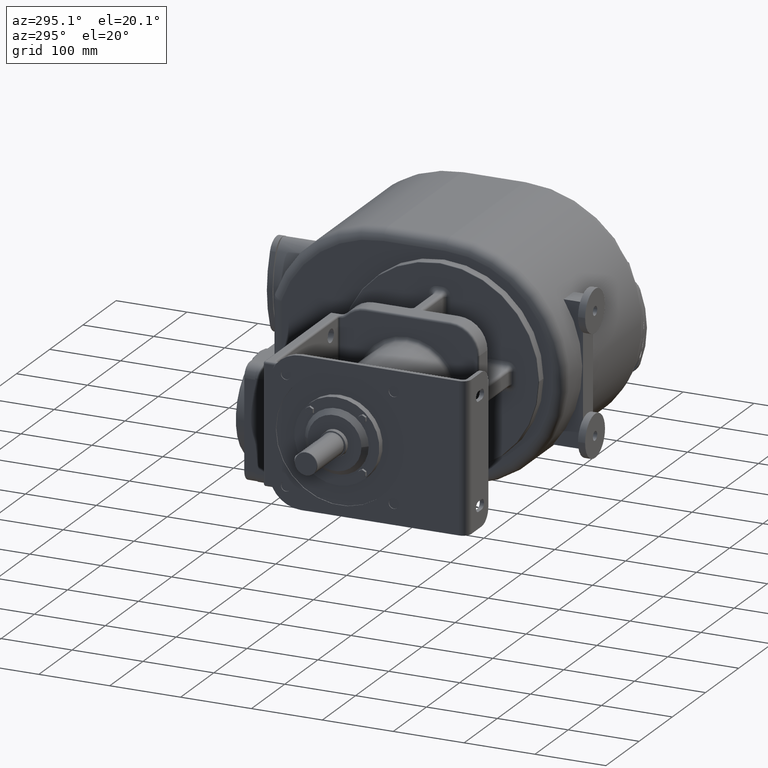
[diagram: clean part render]
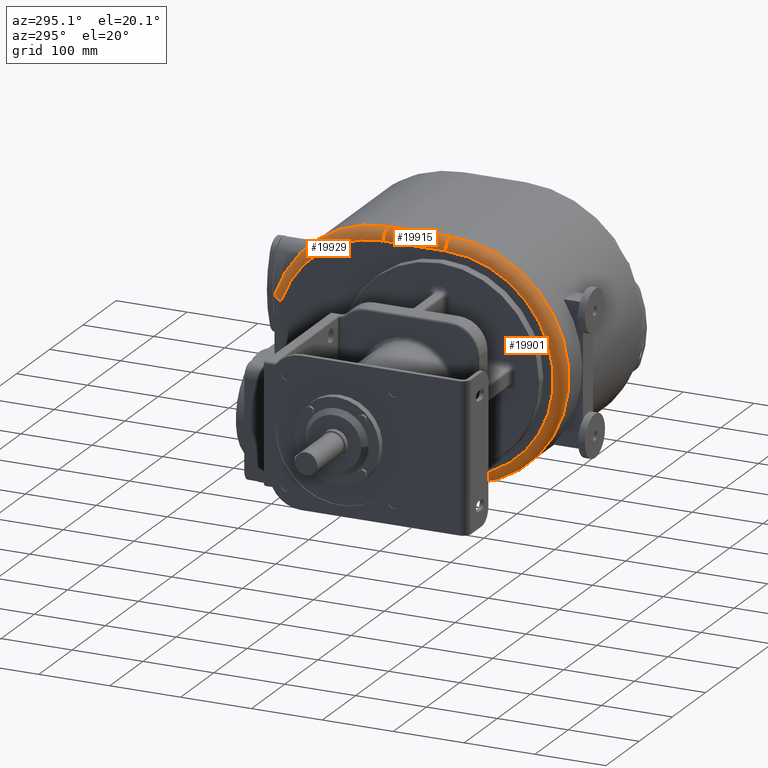
[diagram: same view with one multi-face feature highlighted, each face labeled with its STEP entity id]
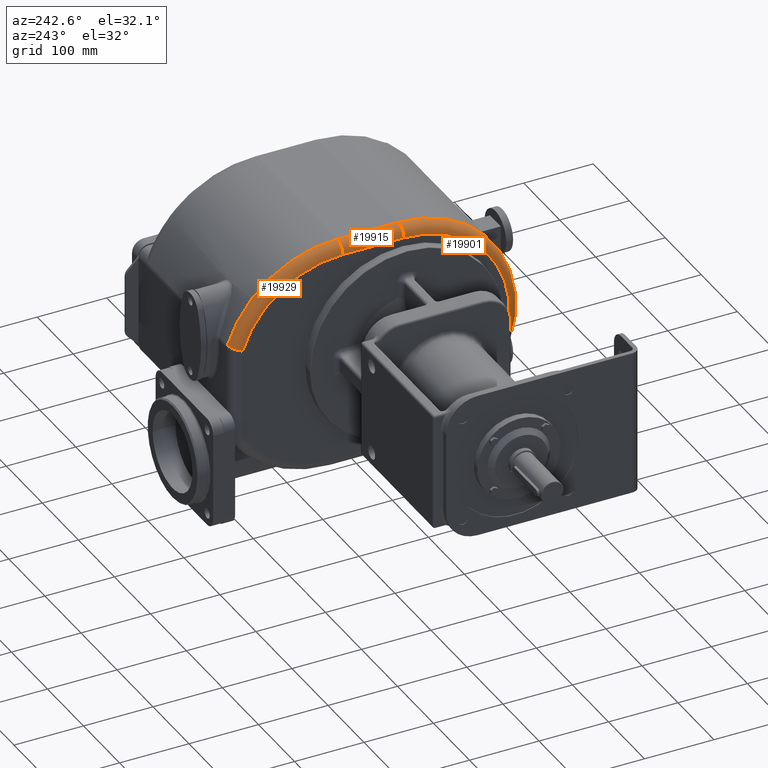
[diagram: same view with one multi-face feature highlighted, each face labeled with its STEP entity id]
A machine part, auxiliary view. The highlighted faces form ONE feature: a constant-radius fillet chain: 3 tangent blend faces with common blend radius 15 mm. The faces share edges in the B-rep.
A second angle (auxiliary view) of the same feature is appended — it is thin or edge-on in the first view.
Their STEP definitions:
[1] entity #19929 (Torus):
#4666=CARTESIAN_POINT('',(-7.E1,2.557779489814E2,0.E0));
#4667=DIRECTION('',(-1.E0,0.E0,0.E0));
#4668=DIRECTION('',(0.E0,0.E0,1.E0));
#4669=AXIS2_PLACEMENT_3D('',#4666,#4667,#4668);
#4995=CARTESIAN_POINT('',(-5.5E1,2.557779489814E2,1.52E2));
#4996=DIRECTION('',(0.E0,1.E0,0.E0));
#4997=DIRECTION('',(-1.E0,0.E0,0.E0));
#4998=AXIS2_PLACEMENT_3D('',#4995,#4996,#4997);
#5137=CARTESIAN_POINT('',(-5.5E1,2.557779489814E2,0.E0));
#5138=DIRECTION('',(-1.E0,0.E0,0.E0));
#5139=DIRECTION('',(0.E0,0.E0,1.E0));
#5140=AXIS2_PLACEMENT_3D('',#5137,#5138,#5139);
#5207=CARTESIAN_POINT('',(-5.5E1,4.E2,4.8E1));
#5208=DIRECTION('',(0.E0,3.157894736842E-1,-9.488292830168E-1));
#5209=DIRECTION('',(-1.E0,0.E0,0.E0));
#5210=AXIS2_PLACEMENT_3D('',#5207,#5208,#5209);
#11757=CARTESIAN_POINT('',(-7.E1,4.E2,4.8E1));
#11759=VERTEX_POINT('',#11757);
#11775=CARTESIAN_POINT('',(-7.E1,2.557779489814E2,1.52E2));
#11776=VERTEX_POINT('',#11775);
#11777=CARTESIAN_POINT('',(-5.5E1,2.557779489814E2,1.67E2));
#11778=VERTEX_POINT('',#11777);
#11779=CARTESIAN_POINT('',(-5.5E1,4.142324392453E2,5.273684210526E1));
#11780=VERTEX_POINT('',#11779);
#19916=CARTESIAN_POINT('',(-5.5E1,2.557779489814E2,0.E0));
#19917=DIRECTION('',(-1.E0,0.E0,0.E0));
#19918=DIRECTION('',(0.E0,-5.452005074595E-3,9.999851377099E-1));
#19919=AXIS2_PLACEMENT_3D('',#19916,#19917,#19918);
#19920=TOROIDAL_SURFACE('',#19919,1.52E2,1.5E1);
#19922=ORIENTED_EDGE('',*,*,#19921,.F.);
#19923=ORIENTED_EDGE('',*,*,#19908,.F.);
#19924=ORIENTED_EDGE('',*,*,#19647,.T.);
#19926=ORIENTED_EDGE('',*,*,#19925,.T.);
#19927=EDGE_LOOP('',(#19922,#19923,#19924,#19926));
#19928=FACE_OUTER_BOUND('',#19927,.F.);
#19929=ADVANCED_FACE('',(#19928),#19920,.T.);
#4670=CIRCLE('',#4669,1.52E2);
#4999=CIRCLE('',#4998,1.5E1);
#5141=CIRCLE('',#5140,1.67E2);
#5211=CIRCLE('',#5210,1.5E1);
#19647=EDGE_CURVE('',#11776,#11759,#4670,.T.);
#19908=EDGE_CURVE('',#11776,#11778,#4999,.T.);
#19921=EDGE_CURVE('',#11778,#11780,#5141,.T.);
#19925=EDGE_CURVE('',#11759,#11780,#5211,.T.);
[2] entity #19915 (Cylinder):
#4671=DIRECTION('',(0.E0,1.E0,0.E0));
#4672=VECTOR('',#4671,8.777794898144E1);
#4673=CARTESIAN_POINT('',(-7.E1,1.68E2,1.52E2));
#4674=LINE('',#4673,#4672);
#4990=CARTESIAN_POINT('',(-5.5E1,1.68E2,1.52E2));
#4991=DIRECTION('',(0.E0,1.E0,0.E0));
#4992=DIRECTION('',(-1.E0,0.E0,0.E0));
#4993=AXIS2_PLACEMENT_3D('',#4990,#4991,#4992);
#4995=CARTESIAN_POINT('',(-5.5E1,2.557779489814E2,1.52E2));
#4996=DIRECTION('',(0.E0,1.E0,0.E0));
#4997=DIRECTION('',(-1.E0,0.E0,0.E0));
#4998=AXIS2_PLACEMENT_3D('',#4995,#4996,#4997);
#7261=DIRECTION('',(0.E0,1.E0,0.E0));
#7262=VECTOR('',#7261,8.777794898141E1);
#7263=CARTESIAN_POINT('',(-5.5E1,1.68E2,1.67E2));
#7264=LINE('',#7263,#7262);
#11771=CARTESIAN_POINT('',(-7.E1,1.68E2,1.52E2));
#11772=VERTEX_POINT('',#11771);
#11773=CARTESIAN_POINT('',(-5.5E1,1.68E2,1.67E2));
#11774=VERTEX_POINT('',#11773);
#11775=CARTESIAN_POINT('',(-7.E1,2.557779489814E2,1.52E2));
#11776=VERTEX_POINT('',#11775);
#11777=CARTESIAN_POINT('',(-5.5E1,2.557779489814E2,1.67E2));
#11778=VERTEX_POINT('',#11777);
#19902=CARTESIAN_POINT('',(-5.5E1,1.670895106419E2,1.52E2));
#19903=DIRECTION('',(0.E0,1.E0,0.E0));
#19904=DIRECTION('',(-1.E0,0.E0,0.E0));
#19905=AXIS2_PLACEMENT_3D('',#19902,#19903,#19904);
#19906=CYLINDRICAL_SURFACE('',#19905,1.5E1);
#19907=ORIENTED_EDGE('',*,*,#19649,.T.);
#19909=ORIENTED_EDGE('',*,*,#19908,.T.);
#19911=ORIENTED_EDGE('',*,*,#19910,.F.);
#19912=ORIENTED_EDGE('',*,*,#19894,.F.);
#19913=EDGE_LOOP('',(#19907,#19909,#19911,#19912));
#19914=FACE_OUTER_BOUND('',#19913,.F.);
#19915=ADVANCED_FACE('',(#19914),#19906,.T.);
#4994=CIRCLE('',#4993,1.5E1);
#4999=CIRCLE('',#4998,1.5E1);
#19649=EDGE_CURVE('',#11772,#11776,#4674,.T.);
#19894=EDGE_CURVE('',#11772,#11774,#4994,.T.);
#19908=EDGE_CURVE('',#11776,#11778,#4999,.T.);
#19910=EDGE_CURVE('',#11774,#11778,#7264,.T.);
[3] entity #19901 (Torus):
#4675=CARTESIAN_POINT('',(-7.E1,1.68E2,0.E0));
#4676=DIRECTION('',(-1.E0,0.E0,0.E0));
#4677=DIRECTION('',(0.E0,0.E0,-1.E0));
#4678=AXIS2_PLACEMENT_3D('',#4675,#4676,#4677);
#4985=CARTESIAN_POINT('',(-5.5E1,1.68E2,-1.52E2));
#4986=DIRECTION('',(0.E0,-1.E0,0.E0));
#4987=DIRECTION('',(-1.E0,0.E0,0.E0));
#4988=AXIS2_PLACEMENT_3D('',#4985,#4986,#4987);
#4990=CARTESIAN_POINT('',(-5.5E1,1.68E2,1.52E2));
#4991=DIRECTION('',(0.E0,1.E0,0.E0));
#4992=DIRECTION('',(-1.E0,0.E0,0.E0));
#4993=AXIS2_PLACEMENT_3D('',#4990,#4991,#4992);
#7229=CARTESIAN_POINT('',(-5.5E1,1.68E2,0.E0));
#7230=DIRECTION('',(-1.E0,0.E0,0.E0));
#7231=DIRECTION('',(0.E0,0.E0,-1.E0));
#7232=AXIS2_PLACEMENT_3D('',#7229,#7230,#7231);
#11767=CARTESIAN_POINT('',(-7.E1,1.68E2,-1.52E2));
#11768=VERTEX_POINT('',#11767);
#11769=CARTESIAN_POINT('',(-5.5E1,1.68E2,-1.67E2));
#11770=VERTEX_POINT('',#11769);
#11771=CARTESIAN_POINT('',(-7.E1,1.68E2,1.52E2));
#11772=VERTEX_POINT('',#11771);
#11773=CARTESIAN_POINT('',(-5.5E1,1.68E2,1.67E2));
#11774=VERTEX_POINT('',#11773);
#19888=CARTESIAN_POINT('',(-5.5E1,1.68E2,0.E0));
#19889=DIRECTION('',(-1.E0,0.E0,0.E0));
#19890=DIRECTION('',(0.E0,5.452005074594E-3,-9.999851377099E-1));
#19891=AXIS2_PLACEMENT_3D('',#19888,#19889,#19890);
#19892=TOROIDAL_SURFACE('',#19891,1.52E2,1.5E1);
#19893=ORIENTED_EDGE('',*,*,#19651,.T.);
#19895=ORIENTED_EDGE('',*,*,#19894,.T.);
#19897=ORIENTED_EDGE('',*,*,#19896,.F.);
#19898=ORIENTED_EDGE('',*,*,#19880,.F.);
#19899=EDGE_LOOP('',(#19893,#19895,#19897,#19898));
#19900=FACE_OUTER_BOUND('',#19899,.F.);
#19901=ADVANCED_FACE('',(#19900),#19892,.T.);
#4679=CIRCLE('',#4678,1.52E2);
#4989=CIRCLE('',#4988,1.5E1);
#4994=CIRCLE('',#4993,1.5E1);
#7233=CIRCLE('',#7232,1.67E2);
#19651=EDGE_CURVE('',#11768,#11772,#4679,.T.);
#19880=EDGE_CURVE('',#11768,#11770,#4989,.T.);
#19894=EDGE_CURVE('',#11772,#11774,#4994,.T.);
#19896=EDGE_CURVE('',#11770,#11774,#7233,.T.);